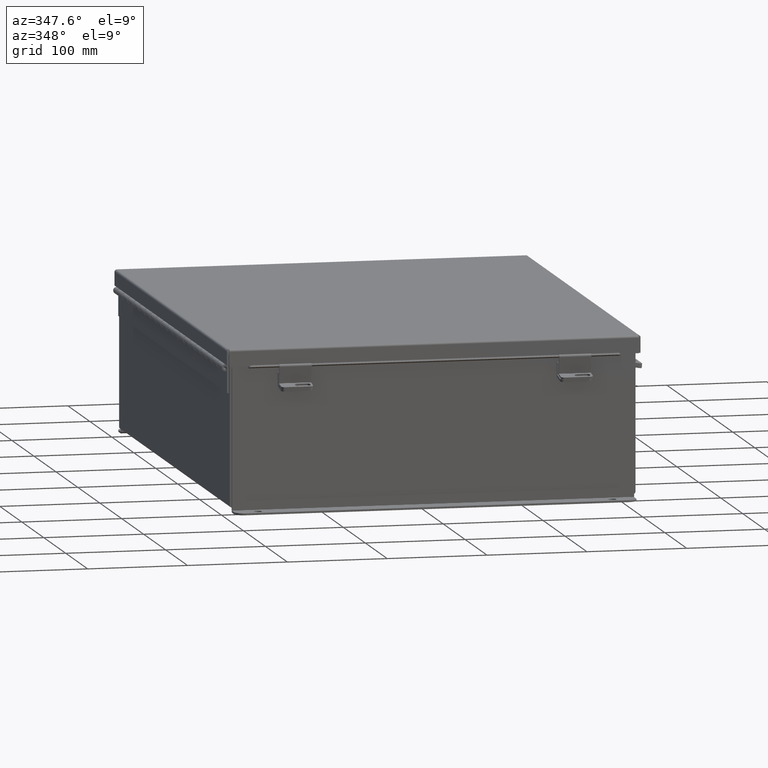
[diagram: clean part render]
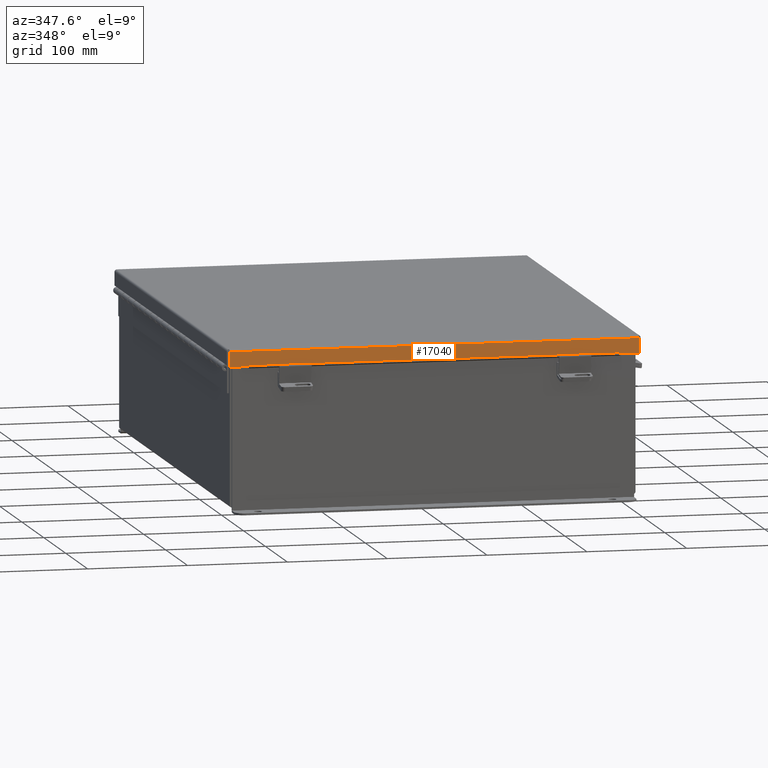
[diagram: same view with one face highlighted and labeled with its STEP entity id]
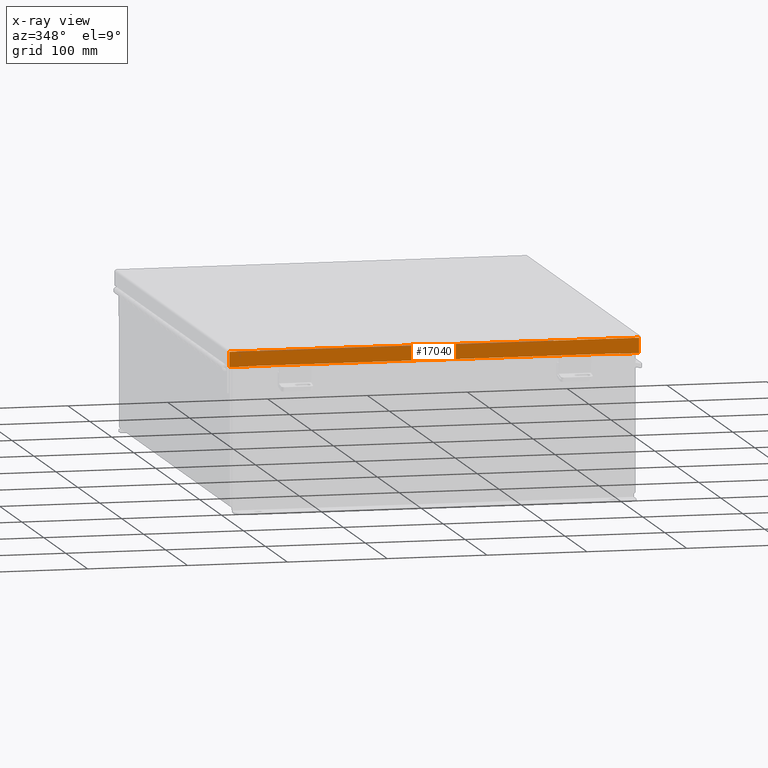
[diagram: x-ray of the same camera — body ghosted, the highlighted face saturated]
A machine part, auxiliary view. The second image highlights one B-rep face of the part: STEP entity #17040.
The next image is the same camera in x-ray: the body ghosted, the highlighted face saturated — about 0% of this face is hidden behind the body in this view.
In plain terms, the highlighted planar face has unit normal (0, 1, -0).
Its self-contained STEP definition (entity closure, byte-faithful):
#170 = VECTOR ( 'NONE', #9642, 39.37007874015748100 ) ;
#269 = CARTESIAN_POINT ( 'NONE',  ( -8.156249999999998200, -10.15625000000001600, 0.01300000000000010700 ) ) ;
#521 = VERTEX_POINT ( 'NONE', #11421 ) ;
#569 = EDGE_CURVE ( 'NONE', #7020, #8640, #9997, .T. ) ;
#636 = CARTESIAN_POINT ( 'NONE',  ( 8.074478932188135600, -10.15625000000001600, 0.01300000000000010700 ) ) ;
#1181 = ORIENTED_EDGE ( 'NONE', *, *, #21602, .T. ) ;
#1294 = VERTEX_POINT ( 'NONE', #5620 ) ;
#1353 = CARTESIAN_POINT ( 'NONE',  ( 7.324478932188131200, -10.15625000000002100, 0.5967115427318772100 ) ) ;
#1561 = PLANE ( 'NONE',  #12168 ) ;
#1715 = VECTOR ( 'NONE', #13376, 39.37007874015748100 ) ;
#2535 = DIRECTION ( 'NONE',  ( -1.000000000000000000, -2.803195560709168300E-033, 4.186740220174599200E-018 ) ) ;
#2900 = VERTEX_POINT ( 'NONE', #14377 ) ;
#2986 = VECTOR ( 'NONE', #17709, 39.37007874015748100 ) ;
#3396 = ORIENTED_EDGE ( 'NONE', *, *, #4518, .F. ) ;
#3881 = VECTOR ( 'NONE', #17824, 39.37007874015748100 ) ;
#3912 = VERTEX_POINT ( 'NONE', #9744 ) ;
#4450 = VECTOR ( 'NONE', #2535, 39.37007874015748100 ) ;
#4518 = EDGE_CURVE ( 'NONE', #12987, #7020, #13906, .T. ) ;
#4716 = CARTESIAN_POINT ( 'NONE',  ( -8.074478932188132100, -10.15625000000001600, 0.0000000000000000000 ) ) ;
#4787 = VECTOR ( 'NONE', #8511, 39.37007874015748100 ) ;
#5214 = ORIENTED_EDGE ( 'NONE', *, *, #11083, .F. ) ;
#5620 = CARTESIAN_POINT ( 'NONE',  ( 7.324478932188133800, -10.15625000000002000, 0.6122999999999994000 ) ) ;
#5660 = CARTESIAN_POINT ( 'NONE',  ( -7.324478932188129400, -10.15625000000002100, 0.6123000000000005100 ) ) ;
#5668 = ORIENTED_EDGE ( 'NONE', *, *, #569, .F. ) ;
#6555 = CARTESIAN_POINT ( 'NONE',  ( -7.324478932188129400, -10.15625000000002100, 0.5967115427318782100 ) ) ;
#6707 = ORIENTED_EDGE ( 'NONE', *, *, #20526, .F. ) ;
#6803 = CARTESIAN_POINT ( 'NONE',  ( 7.324478932188131200, -10.15625000000002000, 0.5967115427318772100 ) ) ;
#6848 = CARTESIAN_POINT ( 'NONE',  ( 8.074478932188135600, -10.15625000000001600, -3.606039351636827200E-014 ) ) ;
#7020 = VERTEX_POINT ( 'NONE', #21551 ) ;
#8461 = DIRECTION ( 'NONE',  ( 2.905052650632662100E-032, 1.000000000000000000, 3.569293475308526100E-015 ) ) ;
#8511 = DIRECTION ( 'NONE',  ( 0.0000000000000000000, -3.569293475308526100E-015, 1.000000000000000000 ) ) ;
#8640 = VERTEX_POINT ( 'NONE', #18679 ) ;
#9642 = DIRECTION ( 'NONE',  ( -1.000000000000000000, 2.239330294933626500E-032, -0.0000000000000000000 ) ) ;
#9744 = CARTESIAN_POINT ( 'NONE',  ( -7.324478932188129400, -10.15625000000002000, 0.5967115427318782100 ) ) ;
#9997 = LINE ( 'NONE', #4716, #13480 ) ;
#10195 = ORIENTED_EDGE ( 'NONE', *, *, #14862, .T. ) ;
#11083 = EDGE_CURVE ( 'NONE', #521, #3912, #12656, .T. ) ;
#11252 = EDGE_LOOP ( 'NONE', ( #5214, #1181, #5668, #3396, #18254, #10195, #6707, #15453 ) ) ;
#11421 = CARTESIAN_POINT ( 'NONE',  ( -7.324478932188129400, -10.15625000000002000, 0.6123000000000005100 ) ) ;
#11623 = VECTOR ( 'NONE', #22144, 39.37007874015748100 ) ;
#12168 = AXIS2_PLACEMENT_3D ( 'NONE', #18856, #8461, #20640 ) ;
#12656 = LINE ( 'NONE', #5660, #2986 ) ;
#12987 = VERTEX_POINT ( 'NONE', #636 ) ;
#13376 = DIRECTION ( 'NONE',  ( 7.009925220120348700E-014, 0.0000000000000000000, 1.000000000000000000 ) ) ;
#13480 = VECTOR ( 'NONE', #16421, 39.37007874015748100 ) ;
#13509 = FACE_OUTER_BOUND ( 'NONE', #11252, .T. ) ;
#13530 = LINE ( 'NONE', #14415, #3881 ) ;
#13906 = LINE ( 'NONE', #269, #170 ) ;
#14377 = CARTESIAN_POINT ( 'NONE',  ( 8.074478932188135600, -10.15625000000002000, 0.6122999999999994000 ) ) ;
#14415 = CARTESIAN_POINT ( 'NONE',  ( 3.201384367575308500E-018, -10.15625000000002000, 0.6123000000000005100 ) ) ;
#14862 = EDGE_CURVE ( 'NONE', #2900, #1294, #22328, .T. ) ;
#14925 = LINE ( 'NONE', #1353, #1715 ) ;
#15171 = VERTEX_POINT ( 'NONE', #6803 ) ;
#15453 = ORIENTED_EDGE ( 'NONE', *, *, #21158, .F. ) ;
#16173 = CARTESIAN_POINT ( 'NONE',  ( 3.201384367575308500E-018, -10.15625000000002000, 0.6123000000000005100 ) ) ;
#16259 = LINE ( 'NONE', #6555, #11623 ) ;
#16421 = DIRECTION ( 'NONE',  ( -0.0000000000000000000, -3.569293475308526100E-015, 1.000000000000000000 ) ) ;
#17040 = ADVANCED_FACE ( 'NONE', ( #13509 ), #1561, .F. ) ;
#17709 = DIRECTION ( 'NONE',  ( 0.0000000000000000000, 0.0000000000000000000, -1.000000000000000000 ) ) ;
#17824 = DIRECTION ( 'NONE',  ( -1.000000000000000000, -2.803195560709168300E-033, 4.186740220174599200E-018 ) ) ;
#18215 = EDGE_CURVE ( 'NONE', #12987, #2900, #18567, .T. ) ;
#18254 = ORIENTED_EDGE ( 'NONE', *, *, #18215, .T. ) ;
#18567 = LINE ( 'NONE', #6848, #4787 ) ;
#18679 = CARTESIAN_POINT ( 'NONE',  ( -8.074478932188132100, -10.15625000000002000, 0.6123000000000005100 ) ) ;
#18856 = CARTESIAN_POINT ( 'NONE',  ( 0.0000000000000000000, -10.15625000000001600, -3.606039351636827200E-014 ) ) ;
#20526 = EDGE_CURVE ( 'NONE', #15171, #1294, #14925, .T. ) ;
#20640 = DIRECTION ( 'NONE',  ( 0.0000000000000000000, -3.569293475308526100E-015, 1.000000000000000000 ) ) ;
#21158 = EDGE_CURVE ( 'NONE', #3912, #15171, #16259, .T. ) ;
#21551 = CARTESIAN_POINT ( 'NONE',  ( -8.074478932188132100, -10.15625000000001600, 0.01300000000000010700 ) ) ;
#21602 = EDGE_CURVE ( 'NONE', #521, #8640, #13530, .T. ) ;
#22144 = DIRECTION ( 'NONE',  ( 1.000000000000000000, 2.258600338820354400E-033, -0.0000000000000000000 ) ) ;
#22328 = LINE ( 'NONE', #16173, #4450 ) ;